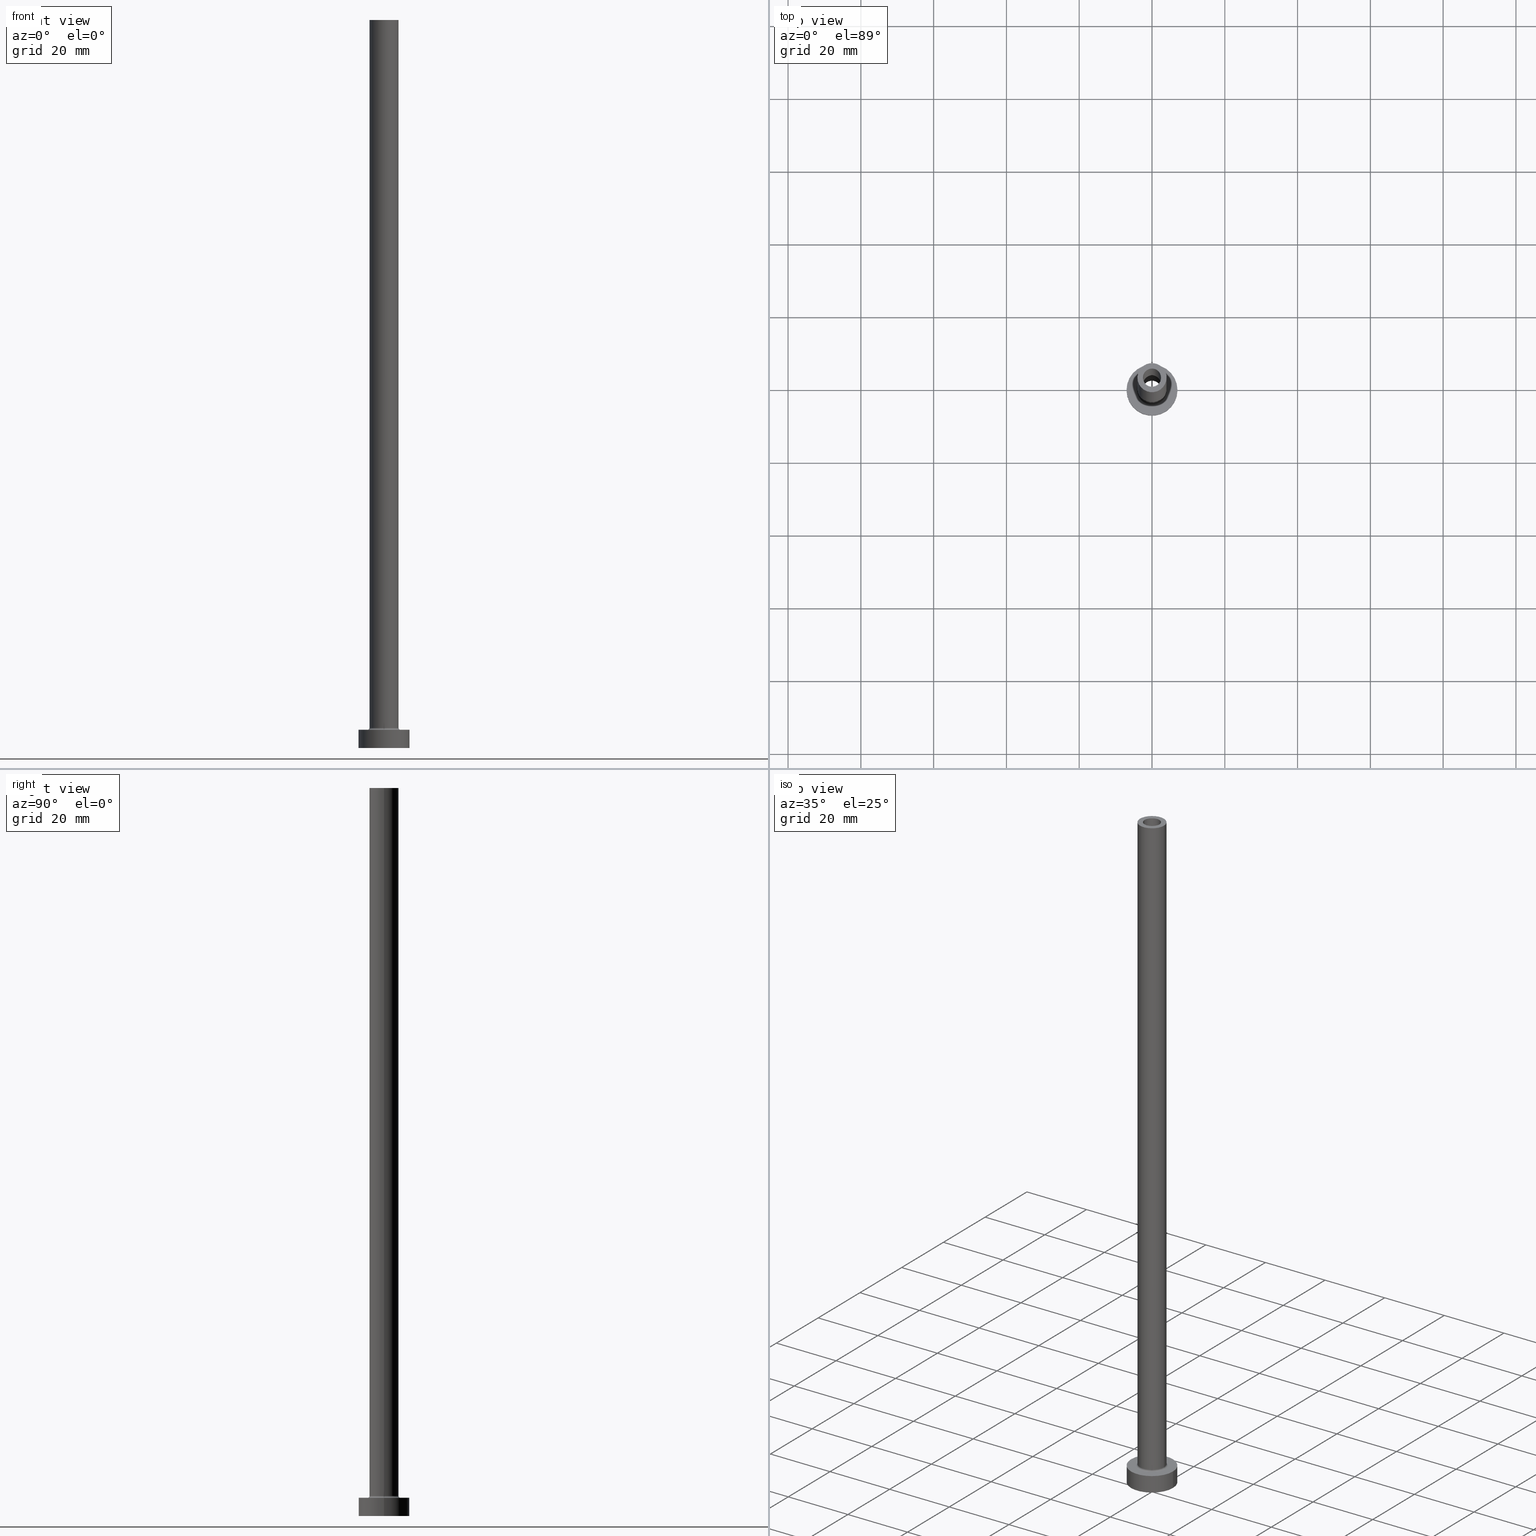
[diagram: canonical four-view strip — front | top / right | iso, engineering-drawing reading convention]
A machine part, canonical four-view strip (front | top / right | iso — engineering-drawing reading convention). The complete STEP part file that produces these views, byte-faithful:
ISO-10303-21;
HEADER;
FILE_DESCRIPTION (( 'STEP AP203' ),
    '1' );
FILE_NAME ('0863.STEP',
    '2023-02-13T17:11:07',
    ( '' ),
    ( '' ),
    'SwSTEP 2.0',
    'SolidWorks 2019',
    '' );
FILE_SCHEMA (( 'CONFIG_CONTROL_DESIGN' ));
ENDSEC;

DATA;
#1 = ADVANCED_FACE ( 'NONE', ( #74, #109 ), #364, .F. ) ;
#2 = VERTEX_POINT ( 'NONE', #207 ) ;
#3 = EDGE_CURVE ( 'NONE', #2, #112, #295, .T. ) ;
#4 = VERTEX_POINT ( 'NONE', #326 ) ;
#5 = CIRCLE ( 'NONE', #168, 2.500000000000000000 ) ;
#6 = AXIS2_PLACEMENT_3D ( 'NONE', #102, #67, #205 ) ;
#7 = VERTEX_POINT ( 'NONE', #142 ) ;
#8 = CARTESIAN_POINT ( 'NONE',  ( 0.000000000000000000, 0.000000000000000000, 200.0000000000000000 ) ) ;
#9 = EDGE_CURVE ( 'NONE', #221, #38, #54, .T. ) ;
#10 = PRODUCT_RELATED_PRODUCT_CATEGORY ( 'detail', '', ( #265 ) ) ;
#11 = VERTEX_POINT ( 'NONE', #398 ) ;
#12 = COORDINATED_UNIVERSAL_TIME_OFFSET ( 1, 0, .AHEAD. ) ;
#13 = CYLINDRICAL_SURFACE ( 'NONE', #254, 2.649999999999999911 ) ;
#14 = AXIS2_PLACEMENT_3D ( 'NONE', #313, #315, #127 ) ;
#15 = ORIENTED_EDGE ( 'NONE', *, *, #243, .T. ) ;
#16 = CC_DESIGN_SECURITY_CLASSIFICATION ( #141, ( #390 ) ) ;
#17 = EDGE_CURVE ( 'NONE', #7, #365, #110, .T. ) ;
#18 = FACE_OUTER_BOUND ( 'NONE', #439, .T. ) ;
#19 = PERSON_AND_ORGANIZATION_ROLE ( 'creator' ) ;
#20 = CARTESIAN_POINT ( 'NONE',  ( 0.000000000000000000, 0.000000000000000000, 200.0000000000000000 ) ) ;
#21 = PERSON_AND_ORGANIZATION_ROLE ( 'design_supplier' ) ;
#22 = AXIS2_PLACEMENT_3D ( 'NONE', #241, #387, #424 ) ;
#23 = DIRECTION ( 'NONE',  ( 0.000000000000000000, 0.000000000000000000, -1.000000000000000000 ) ) ;
#24 = CC_DESIGN_DATE_AND_TIME_ASSIGNMENT ( #229, #409, ( #235 ) ) ;
#25 = CARTESIAN_POINT ( 'NONE',  ( 0.000000000000000000, 0.000000000000000000, 5.000000000000000000 ) ) ;
#26 = CARTESIAN_POINT ( 'NONE',  ( 0.000000000000000000, 0.000000000000000000, 5.000000000000000000 ) ) ;
#27 = CALENDAR_DATE ( 2023, 13, 2 ) ;
#28 = APPLICATION_PROTOCOL_DEFINITION ( 'international standard', 'config_control_design', 1994, #150 ) ;
#29 = VECTOR ( 'NONE', #297, 1000.000000000000000 ) ;
#30 = AXIS2_PLACEMENT_3D ( 'NONE', #137, #50, #340 ) ;
#31 = DIRECTION ( 'NONE',  ( 1.224646799147353207E-16, 1.000000000000000000, -0.000000000000000000 ) ) ;
#32 = FACE_OUTER_BOUND ( 'NONE', #213, .T. ) ;
#33 = CARTESIAN_POINT ( 'NONE',  ( 0.000000000000000000, 0.000000000000000000, 0.000000000000000000 ) ) ;
#34 = EDGE_CURVE ( 'NONE', #116, #112, #348, .T. ) ;
#35 = DIRECTION ( 'NONE',  ( -1.000000000000000000, 1.224646799147351482E-16, 0.000000000000000000 ) ) ;
#36 = PERSON_AND_ORGANIZATION ( #160, #349 ) ;
#37 = ADVANCED_FACE ( 'NONE', ( #457, #427 ), #247, .T. ) ;
#38 = VERTEX_POINT ( 'NONE', #336 ) ;
#39 = COORDINATED_UNIVERSAL_TIME_OFFSET ( 1, 0, .AHEAD. ) ;
#40 = DIRECTION ( 'NONE',  ( 1.000000000000000000, 0.000000000000000000, 0.000000000000000000 ) ) ;
#41 = ORIENTED_EDGE ( 'NONE', *, *, #360, .F. ) ;
#42 = PERSON_AND_ORGANIZATION ( #160, #349 ) ;
#43 = DIRECTION ( 'NONE',  ( 0.000000000000000000, 0.000000000000000000, -1.000000000000000000 ) ) ;
#44 = ORIENTED_EDGE ( 'NONE', *, *, #404, .F. ) ;
#45 = AXIS2_PLACEMENT_3D ( 'NONE', #8, #83, #375 ) ;
#46 = LOCAL_TIME ( 18, 11, 7.000000000000000000, #39 ) ;
#47 = ORIENTED_EDGE ( 'NONE', *, *, #204, .F. ) ;
#48 = CARTESIAN_POINT ( 'NONE',  ( 0.000000000000000000, 0.000000000000000000, 200.0000000000000000 ) ) ;
#49 = DIRECTION ( 'NONE',  ( -1.000000000000000000, 0.000000000000000000, 0.000000000000000000 ) ) ;
#50 = DIRECTION ( 'NONE',  ( 0.000000000000000000, 0.000000000000000000, 1.000000000000000000 ) ) ;
#51 = EDGE_CURVE ( 'NONE', #338, #413, #317, .T. ) ;
#52 = DIRECTION ( 'NONE',  ( 0.000000000000000000, 0.000000000000000000, 1.000000000000000000 ) ) ;
#53 = LINE ( 'NONE', #200, #194 ) ;
#54 = CIRCLE ( 'NONE', #175, 2.649999999999999911 ) ;
#55 = COORDINATED_UNIVERSAL_TIME_OFFSET ( 1, 0, .AHEAD. ) ;
#56 = DIRECTION ( 'NONE',  ( 1.000000000000000000, 0.000000000000000000, 0.000000000000000000 ) ) ;
#57 = DIRECTION ( 'NONE',  ( -1.000000000000000000, 0.000000000000000000, 0.000000000000000000 ) ) ;
#58 = CARTESIAN_POINT ( 'NONE',  ( -2.649999999999999911, 0.000000000000000000, 0.000000000000000000 ) ) ;
#59 = CARTESIAN_POINT ( 'NONE',  ( -2.500000000000000000, 0.000000000000000000, 155.0000000000000284 ) ) ;
#60 = CARTESIAN_POINT ( 'NONE',  ( 0.000000000000000000, 0.000000000000000000, 5.000000000000000000 ) ) ;
#61 = FACE_OUTER_BOUND ( 'NONE', #330, .T. ) ;
#62 = EDGE_CURVE ( 'NONE', #338, #152, #262, .T. ) ;
#63 = APPROVAL_STATUS ( 'not_yet_approved' ) ;
#64 = AXIS2_PLACEMENT_3D ( 'NONE', #73, #105, #359 ) ;
#65 = DIRECTION ( 'NONE',  ( 1.000000000000000000, 0.000000000000000000, 0.000000000000000000 ) ) ;
#66 = LINE ( 'NONE', #269, #389 ) ;
#67 = DIRECTION ( 'NONE',  ( 0.000000000000000000, 0.000000000000000000, 1.000000000000000000 ) ) ;
#68 = APPROVAL ( #211, 'NEUR�EN�' ) ;
#69 = DIRECTION ( 'NONE',  ( 0.000000000000000000, 0.000000000000000000, 1.000000000000000000 ) ) ;
#70 = EDGE_CURVE ( 'NONE', #453, #253, #5, .T. ) ;
#71 = CARTESIAN_POINT ( 'NONE',  ( 2.500000000000000000, 3.061616997868382648E-16, 200.0000000000000000 ) ) ;
#72 = AXIS2_PLACEMENT_3D ( 'NONE', #20, #23, #446 ) ;
#73 = CARTESIAN_POINT ( 'NONE',  ( 0.000000000000000000, 0.000000000000000000, 0.000000000000000000 ) ) ;
#74 = FACE_BOUND ( 'NONE', #156, .T. ) ;
#75 = APPROVAL_ROLE ( '' ) ;
#76 = ORIENTED_EDGE ( 'NONE', *, *, #9, .F. ) ;
#77 = CARTESIAN_POINT ( 'NONE',  ( 0.000000000000000000, 0.000000000000000000, 0.000000000000000000 ) ) ;
#78 = DIRECTION ( 'NONE',  ( 0.000000000000000000, 0.000000000000000000, 1.000000000000000000 ) ) ;
#79 = VECTOR ( 'NONE', #244, 1000.000000000000000 ) ;
#80 = DIRECTION ( 'NONE',  ( 0.000000000000000000, 0.000000000000000000, 1.000000000000000000 ) ) ;
#81 = EDGE_LOOP ( 'NONE', ( #437, #284, #442, #261 ) ) ;
#82 = EDGE_CURVE ( 'NONE', #413, #338, #451, .T. ) ;
#83 = DIRECTION ( 'NONE',  ( 0.000000000000000000, 0.000000000000000000, 1.000000000000000000 ) ) ;
#84 = CIRCLE ( 'NONE', #425, 4.500000000000000888 ) ;
#85 = APPROVAL_PERSON_ORGANIZATION ( #161, #384, #165 ) ;
#86 = ORIENTED_EDGE ( 'NONE', *, *, #9, .T. ) ;
#87 = ORIENTED_EDGE ( 'NONE', *, *, #183, .T. ) ;
#88 = DIRECTION ( 'NONE',  ( 1.000000000000000000, 0.000000000000000000, 0.000000000000000000 ) ) ;
#89 = ORIENTED_EDGE ( 'NONE', *, *, #430, .F. ) ;
#90 = CARTESIAN_POINT ( 'NONE',  ( -4.000000000000000000, 0.000000000000000000, 200.0000000000000000 ) ) ;
#91 = CIRCLE ( 'NONE', #98, 7.000000000000000000 ) ;
#92 = CALENDAR_DATE ( 2023, 13, 2 ) ;
#93 = DIRECTION ( 'NONE',  ( 1.000000000000000000, 0.000000000000000000, 0.000000000000000000 ) ) ;
#94 = DIRECTION ( 'NONE',  ( 1.000000000000000000, 0.000000000000000000, 0.000000000000000000 ) ) ;
#95 = ORIENTED_EDGE ( 'NONE', *, *, #290, .F. ) ;
#96 = DIRECTION ( 'NONE',  ( -1.000000000000000000, 0.000000000000000000, 0.000000000000000000 ) ) ;
#97 = LINE ( 'NONE', #196, #79 ) ;
#98 = AXIS2_PLACEMENT_3D ( 'NONE', #60, #166, #65 ) ;
#99 = AXIS2_PLACEMENT_3D ( 'NONE', #273, #445, #57 ) ;
#100 = CYLINDRICAL_SURFACE ( 'NONE', #301, 2.649999999999999911 ) ;
#101 = DATE_AND_TIME ( #146, #46 ) ;
#102 = CARTESIAN_POINT ( 'NONE',  ( 0.000000000000000000, 0.000000000000000000, 200.0000000000000000 ) ) ;
#103 = ORIENTED_EDGE ( 'NONE', *, *, #354, .T. ) ;
#104 = AXIS2_PLACEMENT_3D ( 'NONE', #450, #392, #93 ) ;
#105 = DIRECTION ( 'NONE',  ( 0.000000000000000000, 0.000000000000000000, 1.000000000000000000 ) ) ;
#106 = CARTESIAN_POINT ( 'NONE',  ( 0.000000000000000000, 0.000000000000000000, 5.000000000000000000 ) ) ;
#107 = ORIENTED_EDGE ( 'NONE', *, *, #17, .T. ) ;
#108 = ORIENTED_EDGE ( 'NONE', *, *, #123, .F. ) ;
#109 = FACE_OUTER_BOUND ( 'NONE', #219, .T. ) ;
#110 = CIRCLE ( 'NONE', #281, 2.500000000000000000 ) ;
#111 = APPROVAL_PERSON_ORGANIZATION ( #456, #68, #288 ) ;
#112 = VERTEX_POINT ( 'NONE', #151 ) ;
#113 = CALENDAR_DATE ( 2023, 13, 2 ) ;
#114 = ORIENTED_EDGE ( 'NONE', *, *, #82, .T. ) ;
#115 = DIRECTION ( 'NONE',  ( 1.000000000000000000, 0.000000000000000000, 0.000000000000000000 ) ) ;
#116 = VERTEX_POINT ( 'NONE', #331 ) ;
#117 = DIRECTION ( 'NONE',  ( 0.000000000000000000, 0.000000000000000000, 1.000000000000000000 ) ) ;
#118 = CIRCLE ( 'NONE', #433, 7.000000000000000000 ) ;
#119 = CIRCLE ( 'NONE', #104, 2.649999999999999911 ) ;
#120 = AXIS2_PLACEMENT_3D ( 'NONE', #252, #80, #223 ) ;
#121 = DIRECTION ( 'NONE',  ( 0.000000000000000000, 0.000000000000000000, 1.000000000000000000 ) ) ;
#122 = ORIENTED_EDGE ( 'NONE', *, *, #82, .F. ) ;
#123 = EDGE_CURVE ( 'NONE', #11, #212, #118, .T. ) ;
#124 = ADVANCED_FACE ( 'NONE', ( #438 ), #189, .T. ) ;
#125 = ORIENTED_EDGE ( 'NONE', *, *, #360, .T. ) ;
#126 = DIRECTION ( 'NONE',  ( 0.000000000000000000, 0.000000000000000000, -1.000000000000000000 ) ) ;
#127 = DIRECTION ( 'NONE',  ( 1.000000000000000000, 0.000000000000000000, 0.000000000000000000 ) ) ;
#128 =( LENGTH_UNIT ( ) NAMED_UNIT ( * ) SI_UNIT ( .MILLI., .METRE. ) );
#129 = CYLINDRICAL_SURFACE ( 'NONE', #99, 4.000000000000000000 ) ;
#130 = AXIS2_PLACEMENT_3D ( 'NONE', #77, #363, #40 ) ;
#131 =( GEOMETRIC_REPRESENTATION_CONTEXT ( 3 ) GLOBAL_UNCERTAINTY_ASSIGNED_CONTEXT ( ( #274 ) ) GLOBAL_UNIT_ASSIGNED_CONTEXT ( ( #128, #388, #397 ) ) REPRESENTATION_CONTEXT ( 'NONE', 'WORKASPACE' ) );
#132 = CARTESIAN_POINT ( 'NONE',  ( 0.000000000000000000, 0.000000000000000000, 162.4953318805773961 ) ) ;
#133 = CARTESIAN_POINT ( 'NONE',  ( 2.500000000000000000, 3.061616997868382648E-16, 155.0000000000000284 ) ) ;
#134 = DIRECTION ( 'NONE',  ( 1.000000000000000000, 0.000000000000000000, 0.000000000000000000 ) ) ;
#135 = CC_DESIGN_PERSON_AND_ORGANIZATION_ASSIGNMENT ( #198, #19, ( #390 ) ) ;
#136 = PERSON_AND_ORGANIZATION_ROLE ( 'classification_officer' ) ;
#137 = CARTESIAN_POINT ( 'NONE',  ( 0.000000000000000000, 0.000000000000000000, 155.0000000000000284 ) ) ;
#138 = DIRECTION ( 'NONE',  ( 0.000000000000000000, 0.000000000000000000, 1.000000000000000000 ) ) ;
#139 = ADVANCED_FACE ( 'NONE', ( #339 ), #13, .F. ) ;
#140 = AXIS2_PLACEMENT_3D ( 'NONE', #357, #138, #286 ) ;
#141 = SECURITY_CLASSIFICATION ( '', '', #143 ) ;
#142 = CARTESIAN_POINT ( 'NONE',  ( -2.500000000000000000, 0.000000000000000000, 200.0000000000000000 ) ) ;
#143 = SECURITY_CLASSIFICATION_LEVEL ( 'unclassified' ) ;
#144 = DIRECTION ( 'NONE',  ( 1.000000000000000000, 0.000000000000000000, 0.000000000000000000 ) ) ;
#145 = ORIENTED_EDGE ( 'NONE', *, *, #3, .T. ) ;
#146 = CALENDAR_DATE ( 2023, 13, 2 ) ;
#147 = ORIENTED_EDGE ( 'NONE', *, *, #307, .F. ) ;
#148 = CIRCLE ( 'NONE', #22, 4.000000000000000000 ) ;
#149 = ORIENTED_EDGE ( 'NONE', *, *, #34, .F. ) ;
#150 = APPLICATION_CONTEXT ( 'configuration controlled 3d designs of mechanical parts and assemblies' ) ;
#151 = CARTESIAN_POINT ( 'NONE',  ( -4.500000000000000888, 5.510910596163088569E-16, 5.000000000000002665 ) ) ;
#152 = VERTEX_POINT ( 'NONE', #234 ) ;
#153 = ORIENTED_EDGE ( 'NONE', *, *, #454, .F. ) ;
#154 = CARTESIAN_POINT ( 'NONE',  ( 0.000000000000000000, 0.000000000000000000, 162.4953318805773961 ) ) ;
#155 = AXIS2_PLACEMENT_3D ( 'NONE', #379, #52, #342 ) ;
#156 = EDGE_LOOP ( 'NONE', ( #257, #441 ) ) ;
#157 = DIRECTION ( 'NONE',  ( -0.000000000000000000, -0.000000000000000000, -1.000000000000000000 ) ) ;
#158 = CARTESIAN_POINT ( 'NONE',  ( 4.000000000000000000, 4.898587196589412829E-16, 200.0000000000000000 ) ) ;
#159 = DIRECTION ( 'NONE',  ( 1.000000000000000000, 0.000000000000000000, 0.000000000000000000 ) ) ;
#160 = PERSON ( 'NEUR�EN�', 'NEUR�EN�', 'NEUR�EN�', ('NEUR�EN�'), ('NEUR�EN�'), ('NEUR�EN�') ) ;
#161 = PERSON_AND_ORGANIZATION ( #160, #349 ) ;
#162 = CARTESIAN_POINT ( 'NONE',  ( 0.000000000000000000, 0.000000000000000000, 200.0000000000000000 ) ) ;
#163 = CARTESIAN_POINT ( 'NONE',  ( 2.649999999999999911, 3.245314017740485962E-16, 162.4953318805773961 ) ) ;
#164 = PLANE ( 'NONE',  #6 ) ;
#165 = APPROVAL_ROLE ( '' ) ;
#166 = DIRECTION ( 'NONE',  ( 0.000000000000000000, 0.000000000000000000, 1.000000000000000000 ) ) ;
#167 = LINE ( 'NONE', #90, #201 ) ;
#168 = AXIS2_PLACEMENT_3D ( 'NONE', #191, #412, #403 ) ;
#169 = EDGE_LOOP ( 'NONE', ( #370, #435 ) ) ;
#170 = TOROIDAL_SURFACE ( 'NONE', #355, 4.500000000000000888, 0.5000000000000000000 ) ;
#171 = CARTESIAN_POINT ( 'NONE',  ( 0.000000000000000000, 0.000000000000000000, 5.000000000000000000 ) ) ;
#172 = APPROVAL_STATUS ( 'not_yet_approved' ) ;
#173 = CC_DESIGN_PERSON_AND_ORGANIZATION_ASSIGNMENT ( #42, #258, ( #235 ) ) ;
#174 = DATE_AND_TIME ( #27, #272 ) ;
#175 = AXIS2_PLACEMENT_3D ( 'NONE', #215, #460, #144 ) ;
#176 = CC_DESIGN_APPROVAL ( #210, ( #141 ) ) ;
#177 = CIRCLE ( 'NONE', #120, 2.500000000000000000 ) ;
#178 = EDGE_CURVE ( 'NONE', #2, #152, #327, .T. ) ;
#179 = MECHANICAL_CONTEXT ( 'NONE', #405, 'mechanical' ) ;
#180 = ORIENTED_EDGE ( 'NONE', *, *, #408, .F. ) ;
#181 = ORIENTED_EDGE ( 'NONE', *, *, #62, .F. ) ;
#182 = CALENDAR_DATE ( 2023, 13, 2 ) ;
#183 = EDGE_CURVE ( 'NONE', #365, #253, #308, .T. ) ;
#184 = DIRECTION ( 'NONE',  ( 1.000000000000000000, 0.000000000000000000, 0.000000000000000000 ) ) ;
#185 = CLOSED_SHELL ( 'NONE', ( #431, #139, #426, #124, #345, #220, #37, #1, #410, #448, #260, #239, #444, #222 ) ) ;
#186 = AXIS2_PLACEMENT_3D ( 'NONE', #393, #69, #159 ) ;
#187 = EDGE_LOOP ( 'NONE', ( #372, #293 ) ) ;
#188 = PRODUCT_DEFINITION_SHAPE ( 'NONE', 'NONE',  #235 ) ;
#189 = CYLINDRICAL_SURFACE ( 'NONE', #271, 4.000000000000000000 ) ;
#190 = ORIENTED_EDGE ( 'NONE', *, *, #3, .F. ) ;
#191 = CARTESIAN_POINT ( 'NONE',  ( 0.000000000000000000, 0.000000000000000000, 155.0000000000000284 ) ) ;
#192 = ORIENTED_EDGE ( 'NONE', *, *, #302, .T. ) ;
#193 = CIRCLE ( 'NONE', #208, 0.5000000000000004441 ) ;
#194 = VECTOR ( 'NONE', #242, 1000.000000000000000 ) ;
#195 = FACE_BOUND ( 'NONE', #187, .T. ) ;
#196 = CARTESIAN_POINT ( 'NONE',  ( -7.000000000000000000, 0.000000000000000000, 5.000000000000000000 ) ) ;
#197 = CARTESIAN_POINT ( 'NONE',  ( 0.000000000000000000, 0.000000000000000000, 5.500000000000005329 ) ) ;
#198 = PERSON_AND_ORGANIZATION ( #160, #349 ) ;
#199 = CYLINDRICAL_SURFACE ( 'NONE', #452, 2.500000000000000000 ) ;
#200 = CARTESIAN_POINT ( 'NONE',  ( -2.500000000000000000, 0.000000000000000000, 200.0000000000000000 ) ) ;
#201 = VECTOR ( 'NONE', #419, 1000.000000000000000 ) ;
#202 = ORIENTED_EDGE ( 'NONE', *, *, #62, .T. ) ;
#203 = CYLINDRICAL_SURFACE ( 'NONE', #428, 7.000000000000000000 ) ;
#204 = EDGE_CURVE ( 'NONE', #38, #250, #270, .T. ) ;
#205 = DIRECTION ( 'NONE',  ( 1.000000000000000000, 0.000000000000000000, -0.000000000000000000 ) ) ;
#206 = CYLINDRICAL_SURFACE ( 'NONE', #417, 7.000000000000000000 ) ;
#207 = CARTESIAN_POINT ( 'NONE',  ( -4.000000000000000000, 0.000000000000000000, 5.500000000000005329 ) ) ;
#208 = AXIS2_PLACEMENT_3D ( 'NONE', #319, #353, #394 ) ;
#209 = AXIS2_PLACEMENT_3D ( 'NONE', #337, #121, #115 ) ;
#210 = APPROVAL ( #172, 'NEUR�EN�' ) ;
#211 = APPROVAL_STATUS ( 'not_yet_approved' ) ;
#212 = VERTEX_POINT ( 'NONE', #310 ) ;
#213 = EDGE_LOOP ( 'NONE', ( #76, #95 ) ) ;
#214 = DIRECTION ( 'NONE',  ( -1.000000000000000000, 0.000000000000000000, 0.000000000000000000 ) ) ;
#215 = CARTESIAN_POINT ( 'NONE',  ( 0.000000000000000000, 0.000000000000000000, 155.0000000000000284 ) ) ;
#216 = EDGE_CURVE ( 'NONE', #341, #4, #91, .T. ) ;
#217 = AXIS2_PLACEMENT_3D ( 'NONE', #48, #371, #231 ) ;
#218 = AXIS2_PLACEMENT_3D ( 'NONE', #416, #277, #88 ) ;
#219 = EDGE_LOOP ( 'NONE', ( #108, #298 ) ) ;
#220 = ADVANCED_FACE ( 'NONE', ( #346 ), #203, .T. ) ;
#221 = VERTEX_POINT ( 'NONE', #314 ) ;
#222 = ADVANCED_FACE ( 'NONE', ( #352 ), #415, .F. ) ;
#223 = DIRECTION ( 'NONE',  ( 1.000000000000000000, 0.000000000000000000, 0.000000000000000000 ) ) ;
#224 = ORIENTED_EDGE ( 'NONE', *, *, #290, .T. ) ;
#225 = COORDINATED_UNIVERSAL_TIME_OFFSET ( 1, 0, .AHEAD. ) ;
#226 = MANIFOLD_SOLID_BREP ( 'Odebrat vysunut�m4', #185 ) ;
#227 = ORIENTED_EDGE ( 'NONE', *, *, #243, .F. ) ;
#228 = EDGE_CURVE ( 'NONE', #250, #311, #361, .T. ) ;
#229 = DATE_AND_TIME ( #182, #343 ) ;
#230 = ORIENTED_EDGE ( 'NONE', *, *, #178, .F. ) ;
#231 = DIRECTION ( 'NONE',  ( 1.000000000000000000, 0.000000000000000000, 0.000000000000000000 ) ) ;
#232 = FACE_OUTER_BOUND ( 'NONE', #362, .T. ) ;
#233 = ORIENTED_EDGE ( 'NONE', *, *, #228, .T. ) ;
#234 = CARTESIAN_POINT ( 'NONE',  ( 4.000000000000000000, 4.898587196589412829E-16, 5.500000000000005329 ) ) ;
#235 = PRODUCT_DEFINITION ( 'NEZN�M�', '', #390, #458 ) ;
#236 = ORIENTED_EDGE ( 'NONE', *, *, #302, .F. ) ;
#237 = DIRECTION ( 'NONE',  ( -0.000000000000000000, -0.000000000000000000, -1.000000000000000000 ) ) ;
#238 = CC_DESIGN_APPROVAL ( #68, ( #235 ) ) ;
#239 = ADVANCED_FACE ( 'NONE', ( #18 ), #100, .F. ) ;
#240 = CARTESIAN_POINT ( 'NONE',  ( 7.000000000000000000, 8.572527594031473190E-16, 5.000000000000000000 ) ) ;
#241 = CARTESIAN_POINT ( 'NONE',  ( 0.000000000000000000, 0.000000000000000000, 5.500000000000005329 ) ) ;
#242 = DIRECTION ( 'NONE',  ( 0.000000000000000000, 0.000000000000000000, -1.000000000000000000 ) ) ;
#243 = EDGE_CURVE ( 'NONE', #413, #2, #167, .T. ) ;
#244 = DIRECTION ( 'NONE',  ( -0.000000000000000000, -0.000000000000000000, -1.000000000000000000 ) ) ;
#245 = ORIENTED_EDGE ( 'NONE', *, *, #316, .F. ) ;
#246 = PERSON_AND_ORGANIZATION ( #160, #349 ) ;
#247 = PLANE ( 'NONE',  #140 ) ;
#248 = TOROIDAL_SURFACE ( 'NONE', #461, 4.500000000000000888, 0.5000000000000000000 ) ;
#249 = ORIENTED_EDGE ( 'NONE', *, *, #378, .T. ) ;
#250 = VERTEX_POINT ( 'NONE', #449 ) ;
#251 = ORIENTED_EDGE ( 'NONE', *, *, #34, .T. ) ;
#252 = CARTESIAN_POINT ( 'NONE',  ( 0.000000000000000000, 0.000000000000000000, 155.0000000000000284 ) ) ;
#253 = VERTEX_POINT ( 'NONE', #133 ) ;
#254 = AXIS2_PLACEMENT_3D ( 'NONE', #154, #43, #303 ) ;
#255 = APPROVAL_PERSON_ORGANIZATION ( #246, #210, #75 ) ;
#256 = DIRECTION ( 'NONE',  ( 1.000000000000000000, 0.000000000000000000, 0.000000000000000000 ) ) ;
#257 = ORIENTED_EDGE ( 'NONE', *, *, #354, .F. ) ;
#258 = PERSON_AND_ORGANIZATION_ROLE ( 'creator' ) ;
#259 = CARTESIAN_POINT ( 'NONE',  ( 4.000000000000000000, 4.898587196589412829E-16, 200.0000000000000000 ) ) ;
#260 = ADVANCED_FACE ( 'NONE', ( #278 ), #248, .F. ) ;
#261 = ORIENTED_EDGE ( 'NONE', *, *, #291, .F. ) ;
#262 = LINE ( 'NONE', #259, #29 ) ;
#263 = AXIS2_PLACEMENT_3D ( 'NONE', #33, #292, #459 ) ;
#264 = EDGE_LOOP ( 'NONE', ( #411, #249, #401, #44 ) ) ;
#265 = PRODUCT ( '0863', '0863', '', ( #179 ) ) ;
#266 = CC_DESIGN_PERSON_AND_ORGANIZATION_ASSIGNMENT ( #285, #323, ( #265 ) ) ;
#267 = CARTESIAN_POINT ( 'NONE',  ( -4.000000000000000000, 0.000000000000000000, 200.0000000000000000 ) ) ;
#268 = EDGE_LOOP ( 'NONE', ( #86, #407, #233, #236 ) ) ;
#269 = CARTESIAN_POINT ( 'NONE',  ( -2.649999999999999911, 0.000000000000000000, 162.4953318805773961 ) ) ;
#270 = LINE ( 'NONE', #163, #287 ) ;
#271 = AXIS2_PLACEMENT_3D ( 'NONE', #299, #377, #49 ) ;
#272 = LOCAL_TIME ( 18, 11, 7.000000000000000000, #429 ) ;
#273 = CARTESIAN_POINT ( 'NONE',  ( 0.000000000000000000, 0.000000000000000000, 200.0000000000000000 ) ) ;
#274 = UNCERTAINTY_MEASURE_WITH_UNIT (LENGTH_MEASURE( 1.000000000000000082E-05 ), #128, 'distance_accuracy_value', 'NONE');
#275 = PERSON_AND_ORGANIZATION ( #160, #349 ) ;
#276 = DIRECTION ( 'NONE',  ( 0.000000000000000000, 0.000000000000000000, -1.000000000000000000 ) ) ;
#277 = DIRECTION ( 'NONE',  ( 0.000000000000000000, 0.000000000000000000, 1.000000000000000000 ) ) ;
#278 = FACE_OUTER_BOUND ( 'NONE', #318, .T. ) ;
#279 = DATE_AND_TIME ( #92, #391 ) ;
#280 = DIRECTION ( 'NONE',  ( 0.000000000000000000, 0.000000000000000000, -1.000000000000000000 ) ) ;
#281 = AXIS2_PLACEMENT_3D ( 'NONE', #283, #78, #256 ) ;
#282 = APPROVAL_DATE_TIME ( #279, #384 ) ;
#283 = CARTESIAN_POINT ( 'NONE',  ( 0.000000000000000000, 0.000000000000000000, 200.0000000000000000 ) ) ;
#284 = ORIENTED_EDGE ( 'NONE', *, *, #408, .T. ) ;
#285 = PERSON_AND_ORGANIZATION ( #160, #349 ) ;
#286 = DIRECTION ( 'NONE',  ( 1.000000000000000000, 0.000000000000000000, -0.000000000000000000 ) ) ;
#287 = VECTOR ( 'NONE', #351, 1000.000000000000000 ) ;
#288 = APPROVAL_ROLE ( '' ) ;
#289 = ORIENTED_EDGE ( 'NONE', *, *, #178, .T. ) ;
#290 = EDGE_CURVE ( 'NONE', #38, #221, #119, .T. ) ;
#291 = EDGE_CURVE ( 'NONE', #4, #11, #97, .T. ) ;
#292 = DIRECTION ( 'NONE',  ( 0.000000000000000000, 0.000000000000000000, 1.000000000000000000 ) ) ;
#293 = ORIENTED_EDGE ( 'NONE', *, *, #404, .T. ) ;
#294 = ORIENTED_EDGE ( 'NONE', *, *, #216, .T. ) ;
#295 = CIRCLE ( 'NONE', #381, 0.5000000000000004441 ) ;
#296 = VECTOR ( 'NONE', #157, 1000.000000000000000 ) ;
#297 = DIRECTION ( 'NONE',  ( -0.000000000000000000, -0.000000000000000000, -1.000000000000000000 ) ) ;
#298 = ORIENTED_EDGE ( 'NONE', *, *, #423, .F. ) ;
#299 = CARTESIAN_POINT ( 'NONE',  ( 0.000000000000000000, 0.000000000000000000, 200.0000000000000000 ) ) ;
#300 = ORIENTED_EDGE ( 'NONE', *, *, #454, .T. ) ;
#301 = AXIS2_PLACEMENT_3D ( 'NONE', #132, #276, #96 ) ;
#302 = EDGE_CURVE ( 'NONE', #221, #311, #66, .T. ) ;
#303 = DIRECTION ( 'NONE',  ( -1.000000000000000000, 0.000000000000000000, 0.000000000000000000 ) ) ;
#304 = CIRCLE ( 'NONE', #218, 7.000000000000000000 ) ;
#305 = FACE_BOUND ( 'NONE', #169, .T. ) ;
#306 = ORIENTED_EDGE ( 'NONE', *, *, #307, .T. ) ;
#307 = EDGE_CURVE ( 'NONE', #152, #2, #148, .T. ) ;
#308 = LINE ( 'NONE', #368, #399 ) ;
#309 = FACE_OUTER_BOUND ( 'NONE', #421, .T. ) ;
#310 = CARTESIAN_POINT ( 'NONE',  ( 7.000000000000000000, 8.572527594031473190E-16, 0.000000000000000000 ) ) ;
#311 = VERTEX_POINT ( 'NONE', #58 ) ;
#312 = CC_DESIGN_PERSON_AND_ORGANIZATION_ASSIGNMENT ( #275, #21, ( #390 ) ) ;
#313 = CARTESIAN_POINT ( 'NONE',  ( 0.000000000000000000, 0.000000000000000000, 0.000000000000000000 ) ) ;
#314 = CARTESIAN_POINT ( 'NONE',  ( -2.649999999999999911, 0.000000000000000000, 155.0000000000000284 ) ) ;
#315 = DIRECTION ( 'NONE',  ( -0.000000000000000000, -0.000000000000000000, -1.000000000000000000 ) ) ;
#316 = EDGE_CURVE ( 'NONE', #112, #116, #84, .T. ) ;
#317 = CIRCLE ( 'NONE', #45, 4.000000000000000000 ) ;
#318 = EDGE_LOOP ( 'NONE', ( #190, #147, #125, #245 ) ) ;
#319 = CARTESIAN_POINT ( 'NONE',  ( 4.500000000000000888, 0.000000000000000000, 5.500000000000005329 ) ) ;
#320 = DIRECTION ( 'NONE',  ( -0.000000000000000000, -0.000000000000000000, -1.000000000000000000 ) ) ;
#321 = PLANE ( 'NONE',  #30 ) ;
#322 = APPROVAL_DATE_TIME ( #101, #210 ) ;
#323 = PERSON_AND_ORGANIZATION_ROLE ( 'design_owner' ) ;
#324 = CARTESIAN_POINT ( 'NONE',  ( -4.500000000000000888, 5.510910596163089556E-16, 5.500000000000005329 ) ) ;
#325 = SHAPE_DEFINITION_REPRESENTATION ( #188, #356 ) ;
#326 = CARTESIAN_POINT ( 'NONE',  ( -7.000000000000000000, 0.000000000000000000, 5.000000000000000000 ) ) ;
#327 = CIRCLE ( 'NONE', #155, 4.000000000000000000 ) ;
#328 = EDGE_LOOP ( 'NONE', ( #300, #294 ) ) ;
#329 = ORIENTED_EDGE ( 'NONE', *, *, #316, .T. ) ;
#330 = EDGE_LOOP ( 'NONE', ( #114, #432 ) ) ;
#331 = CARTESIAN_POINT ( 'NONE',  ( 4.500000000000000888, 0.000000000000000000, 5.000000000000002665 ) ) ;
#332 = EDGE_LOOP ( 'NONE', ( #107, #87, #406, #89 ) ) ;
#333 = CIRCLE ( 'NONE', #130, 2.649999999999999911 ) ;
#334 = CIRCLE ( 'NONE', #209, 2.500000000000000000 ) ;
#335 = EDGE_LOOP ( 'NONE', ( #395, #202, #306, #227 ) ) ;
#336 = CARTESIAN_POINT ( 'NONE',  ( 2.649999999999999911, 3.245314017740485962E-16, 155.0000000000000284 ) ) ;
#337 = CARTESIAN_POINT ( 'NONE',  ( 0.000000000000000000, 0.000000000000000000, 200.0000000000000000 ) ) ;
#338 = VERTEX_POINT ( 'NONE', #158 ) ;
#339 = FACE_OUTER_BOUND ( 'NONE', #268, .T. ) ;
#340 = DIRECTION ( 'NONE',  ( 1.000000000000000000, 0.000000000000000000, -0.000000000000000000 ) ) ;
#341 = VERTEX_POINT ( 'NONE', #240 ) ;
#342 = DIRECTION ( 'NONE',  ( 1.000000000000000000, 0.000000000000000000, 0.000000000000000000 ) ) ;
#343 = LOCAL_TIME ( 18, 11, 7.000000000000000000, #225 ) ;
#344 = DIRECTION ( 'NONE',  ( 0.000000000000000000, 0.000000000000000000, 1.000000000000000000 ) ) ;
#345 = ADVANCED_FACE ( 'NONE', ( #385 ), #206, .T. ) ;
#346 = FACE_OUTER_BOUND ( 'NONE', #447, .T. ) ;
#347 = DIRECTION ( 'NONE',  ( -0.000000000000000000, -0.000000000000000000, -1.000000000000000000 ) ) ;
#348 = CIRCLE ( 'NONE', #373, 4.500000000000000888 ) ;
#349 = ORGANIZATION ( 'NEUR�EN�', 'NEUR�EN�', '' ) ;
#350 = DIRECTION ( 'NONE',  ( -1.000000000000000000, 0.000000000000000000, 0.000000000000000000 ) ) ;
#351 = DIRECTION ( 'NONE',  ( 0.000000000000000000, 0.000000000000000000, -1.000000000000000000 ) ) ;
#352 = FACE_OUTER_BOUND ( 'NONE', #264, .T. ) ;
#353 = DIRECTION ( 'NONE',  ( 0.000000000000000000, -1.000000000000000000, 0.000000000000000000 ) ) ;
#354 = EDGE_CURVE ( 'NONE', #311, #250, #333, .T. ) ;
#355 = AXIS2_PLACEMENT_3D ( 'NONE', #197, #344, #94 ) ;
#356 = ADVANCED_BREP_SHAPE_REPRESENTATION ( '0863', ( #226, #263 ), #131 ) ;
#357 = CARTESIAN_POINT ( 'NONE',  ( 0.000000000000000000, 0.000000000000000000, 5.000000000000000000 ) ) ;
#358 = DIRECTION ( 'NONE',  ( -0.000000000000000000, -0.000000000000000000, -1.000000000000000000 ) ) ;
#359 = DIRECTION ( 'NONE',  ( 1.000000000000000000, 0.000000000000000000, -0.000000000000000000 ) ) ;
#360 = EDGE_CURVE ( 'NONE', #152, #116, #193, .T. ) ;
#361 = CIRCLE ( 'NONE', #14, 2.649999999999999911 ) ;
#362 = EDGE_LOOP ( 'NONE', ( #230, #145, #149, #41 ) ) ;
#363 = DIRECTION ( 'NONE',  ( -0.000000000000000000, -0.000000000000000000, -1.000000000000000000 ) ) ;
#364 = PLANE ( 'NONE',  #64 ) ;
#365 = VERTEX_POINT ( 'NONE', #71 ) ;
#366 = EDGE_LOOP ( 'NONE', ( #251, #329 ) ) ;
#367 = APPROVAL_DATE_TIME ( #414, #68 ) ;
#368 = CARTESIAN_POINT ( 'NONE',  ( 2.500000000000000000, 3.061616997868382648E-16, 200.0000000000000000 ) ) ;
#369 = LINE ( 'NONE', #380, #296 ) ;
#370 = ORIENTED_EDGE ( 'NONE', *, *, #17, .F. ) ;
#371 = DIRECTION ( 'NONE',  ( 0.000000000000000000, 0.000000000000000000, 1.000000000000000000 ) ) ;
#372 = ORIENTED_EDGE ( 'NONE', *, *, #70, .T. ) ;
#373 = AXIS2_PLACEMENT_3D ( 'NONE', #171, #320, #455 ) ;
#374 = CIRCLE ( 'NONE', #186, 7.000000000000000000 ) ;
#375 = DIRECTION ( 'NONE',  ( 1.000000000000000000, 0.000000000000000000, 0.000000000000000000 ) ) ;
#376 = ORIENTED_EDGE ( 'NONE', *, *, #291, .T. ) ;
#377 = DIRECTION ( 'NONE',  ( -0.000000000000000000, -0.000000000000000000, -1.000000000000000000 ) ) ;
#378 = EDGE_CURVE ( 'NONE', #365, #7, #334, .T. ) ;
#379 = CARTESIAN_POINT ( 'NONE',  ( 0.000000000000000000, 0.000000000000000000, 5.500000000000005329 ) ) ;
#380 = CARTESIAN_POINT ( 'NONE',  ( 7.000000000000000000, 8.572527594031473190E-16, 5.000000000000000000 ) ) ;
#381 = AXIS2_PLACEMENT_3D ( 'NONE', #324, #31, #35 ) ;
#382 = CARTESIAN_POINT ( 'NONE',  ( 0.000000000000000000, 0.000000000000000000, 5.500000000000005329 ) ) ;
#383 = LOCAL_TIME ( 18, 11, 7.000000000000000000, #12 ) ;
#384 = APPROVAL ( #63, 'NEUR�EN�' ) ;
#385 = FACE_OUTER_BOUND ( 'NONE', #81, .T. ) ;
#386 = FACE_OUTER_BOUND ( 'NONE', #332, .T. ) ;
#387 = DIRECTION ( 'NONE',  ( 0.000000000000000000, 0.000000000000000000, 1.000000000000000000 ) ) ;
#388 =( NAMED_UNIT ( * ) PLANE_ANGLE_UNIT ( ) SI_UNIT ( $, .RADIAN. ) );
#389 = VECTOR ( 'NONE', #280, 1000.000000000000000 ) ;
#390 = PRODUCT_DEFINITION_FORMATION_WITH_SPECIFIED_SOURCE ( 'LIBOVOLN�', '', #265, .NOT_KNOWN. ) ;
#391 = LOCAL_TIME ( 18, 11, 7.000000000000000000, #55 ) ;
#392 = DIRECTION ( 'NONE',  ( 0.000000000000000000, 0.000000000000000000, 1.000000000000000000 ) ) ;
#393 = CARTESIAN_POINT ( 'NONE',  ( 0.000000000000000000, 0.000000000000000000, 5.000000000000000000 ) ) ;
#394 = DIRECTION ( 'NONE',  ( 0.000000000000000000, 0.000000000000000000, -1.000000000000000000 ) ) ;
#395 = ORIENTED_EDGE ( 'NONE', *, *, #51, .F. ) ;
#396 = DATE_TIME_ROLE ( 'classification_date' ) ;
#397 =( NAMED_UNIT ( * ) SI_UNIT ( $, .STERADIAN. ) SOLID_ANGLE_UNIT ( ) );
#398 = CARTESIAN_POINT ( 'NONE',  ( -7.000000000000000000, 0.000000000000000000, 0.000000000000000000 ) ) ;
#399 = VECTOR ( 'NONE', #126, 1000.000000000000000 ) ;
#400 = CC_DESIGN_DATE_AND_TIME_ASSIGNMENT ( #174, #396, ( #141 ) ) ;
#401 = ORIENTED_EDGE ( 'NONE', *, *, #430, .T. ) ;
#402 = APPLICATION_PROTOCOL_DEFINITION ( 'international standard', 'config_control_design', 1994, #405 ) ;
#403 = DIRECTION ( 'NONE',  ( 1.000000000000000000, 0.000000000000000000, 0.000000000000000000 ) ) ;
#404 = EDGE_CURVE ( 'NONE', #253, #453, #177, .T. ) ;
#405 = APPLICATION_CONTEXT ( 'configuration controlled 3d designs of mechanical parts and assemblies' ) ;
#406 = ORIENTED_EDGE ( 'NONE', *, *, #70, .F. ) ;
#407 = ORIENTED_EDGE ( 'NONE', *, *, #204, .T. ) ;
#408 = EDGE_CURVE ( 'NONE', #341, #212, #369, .T. ) ;
#409 = DATE_TIME_ROLE ( 'creation_date' ) ;
#410 = ADVANCED_FACE ( 'NONE', ( #309 ), #129, .T. ) ;
#411 = ORIENTED_EDGE ( 'NONE', *, *, #183, .F. ) ;
#412 = DIRECTION ( 'NONE',  ( 0.000000000000000000, 0.000000000000000000, 1.000000000000000000 ) ) ;
#413 = VERTEX_POINT ( 'NONE', #267 ) ;
#414 = DATE_AND_TIME ( #113, #383 ) ;
#415 = CYLINDRICAL_SURFACE ( 'NONE', #72, 2.500000000000000000 ) ;
#416 = CARTESIAN_POINT ( 'NONE',  ( 0.000000000000000000, 0.000000000000000000, 0.000000000000000000 ) ) ;
#417 = AXIS2_PLACEMENT_3D ( 'NONE', #106, #358, #214 ) ;
#418 = DIRECTION ( 'NONE',  ( -1.000000000000000000, 0.000000000000000000, 0.000000000000000000 ) ) ;
#419 = DIRECTION ( 'NONE',  ( -0.000000000000000000, -0.000000000000000000, -1.000000000000000000 ) ) ;
#420 = DIRECTION ( 'NONE',  ( 0.000000000000000000, 0.000000000000000000, -1.000000000000000000 ) ) ;
#421 = EDGE_LOOP ( 'NONE', ( #181, #122, #15, #289 ) ) ;
#422 = DIRECTION ( 'NONE',  ( 0.000000000000000000, 0.000000000000000000, 1.000000000000000000 ) ) ;
#423 = EDGE_CURVE ( 'NONE', #212, #11, #304, .T. ) ;
#424 = DIRECTION ( 'NONE',  ( 1.000000000000000000, 0.000000000000000000, 0.000000000000000000 ) ) ;
#425 = AXIS2_PLACEMENT_3D ( 'NONE', #26, #237, #56 ) ;
#426 = ADVANCED_FACE ( 'NONE', ( #232 ), #170, .F. ) ;
#427 = FACE_OUTER_BOUND ( 'NONE', #328, .T. ) ;
#428 = AXIS2_PLACEMENT_3D ( 'NONE', #25, #347, #418 ) ;
#429 = COORDINATED_UNIVERSAL_TIME_OFFSET ( 1, 0, .AHEAD. ) ;
#430 = EDGE_CURVE ( 'NONE', #7, #453, #53, .T. ) ;
#431 = ADVANCED_FACE ( 'NONE', ( #386 ), #199, .F. ) ;
#432 = ORIENTED_EDGE ( 'NONE', *, *, #51, .T. ) ;
#433 = AXIS2_PLACEMENT_3D ( 'NONE', #443, #117, #184 ) ;
#434 = CC_DESIGN_APPROVAL ( #384, ( #390 ) ) ;
#435 = ORIENTED_EDGE ( 'NONE', *, *, #378, .F. ) ;
#436 = ORIENTED_EDGE ( 'NONE', *, *, #123, .T. ) ;
#437 = ORIENTED_EDGE ( 'NONE', *, *, #216, .F. ) ;
#438 = FACE_OUTER_BOUND ( 'NONE', #335, .T. ) ;
#439 = EDGE_LOOP ( 'NONE', ( #47, #224, #192, #103 ) ) ;
#440 = CC_DESIGN_PERSON_AND_ORGANIZATION_ASSIGNMENT ( #36, #136, ( #141 ) ) ;
#441 = ORIENTED_EDGE ( 'NONE', *, *, #228, .F. ) ;
#442 = ORIENTED_EDGE ( 'NONE', *, *, #423, .T. ) ;
#443 = CARTESIAN_POINT ( 'NONE',  ( 0.000000000000000000, 0.000000000000000000, 0.000000000000000000 ) ) ;
#444 = ADVANCED_FACE ( 'NONE', ( #195, #32 ), #321, .F. ) ;
#445 = DIRECTION ( 'NONE',  ( -0.000000000000000000, -0.000000000000000000, -1.000000000000000000 ) ) ;
#446 = DIRECTION ( 'NONE',  ( -1.000000000000000000, 0.000000000000000000, 0.000000000000000000 ) ) ;
#447 = EDGE_LOOP ( 'NONE', ( #180, #153, #376, #436 ) ) ;
#448 = ADVANCED_FACE ( 'NONE', ( #305, #61 ), #164, .T. ) ;
#449 = CARTESIAN_POINT ( 'NONE',  ( 2.649999999999999911, 3.245314017740485962E-16, 0.000000000000000000 ) ) ;
#450 = CARTESIAN_POINT ( 'NONE',  ( 0.000000000000000000, 0.000000000000000000, 155.0000000000000284 ) ) ;
#451 = CIRCLE ( 'NONE', #217, 4.000000000000000000 ) ;
#452 = AXIS2_PLACEMENT_3D ( 'NONE', #162, #420, #350 ) ;
#453 = VERTEX_POINT ( 'NONE', #59 ) ;
#454 = EDGE_CURVE ( 'NONE', #4, #341, #374, .T. ) ;
#455 = DIRECTION ( 'NONE',  ( 1.000000000000000000, 0.000000000000000000, 0.000000000000000000 ) ) ;
#456 = PERSON_AND_ORGANIZATION ( #160, #349 ) ;
#457 = FACE_BOUND ( 'NONE', #366, .T. ) ;
#458 = DESIGN_CONTEXT ( 'detailed design', #150, 'design' ) ;
#459 = DIRECTION ( 'NONE',  ( 1.000000000000000000, 0.000000000000000000, 0.000000000000000000 ) ) ;
#460 = DIRECTION ( 'NONE',  ( 0.000000000000000000, 0.000000000000000000, 1.000000000000000000 ) ) ;
#461 = AXIS2_PLACEMENT_3D ( 'NONE', #382, #422, #134 ) ;
ENDSEC;
END-ISO-10303-21;
